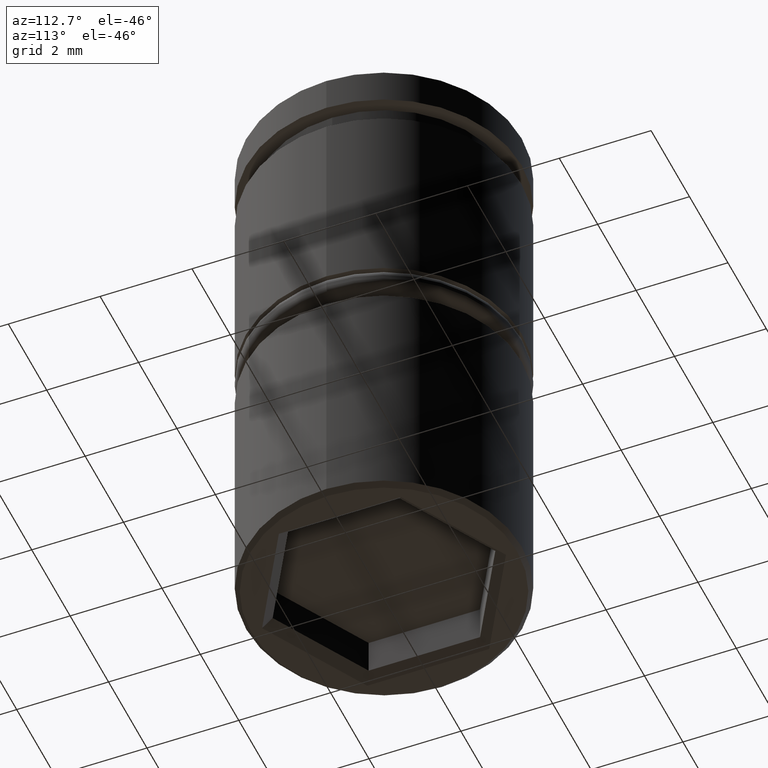
[diagram: clean part render]
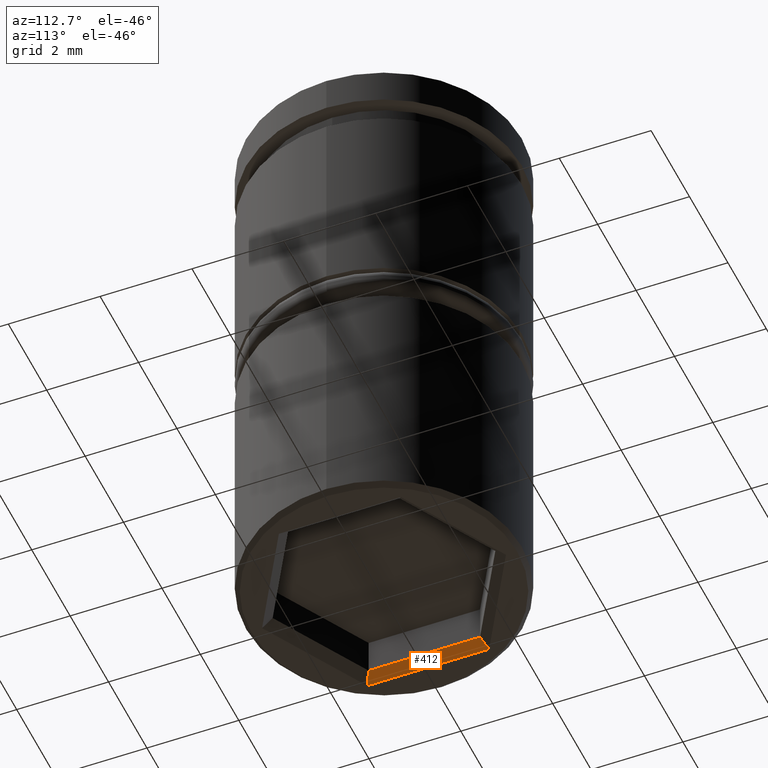
[diagram: same view with one face highlighted and labeled with its STEP entity id]
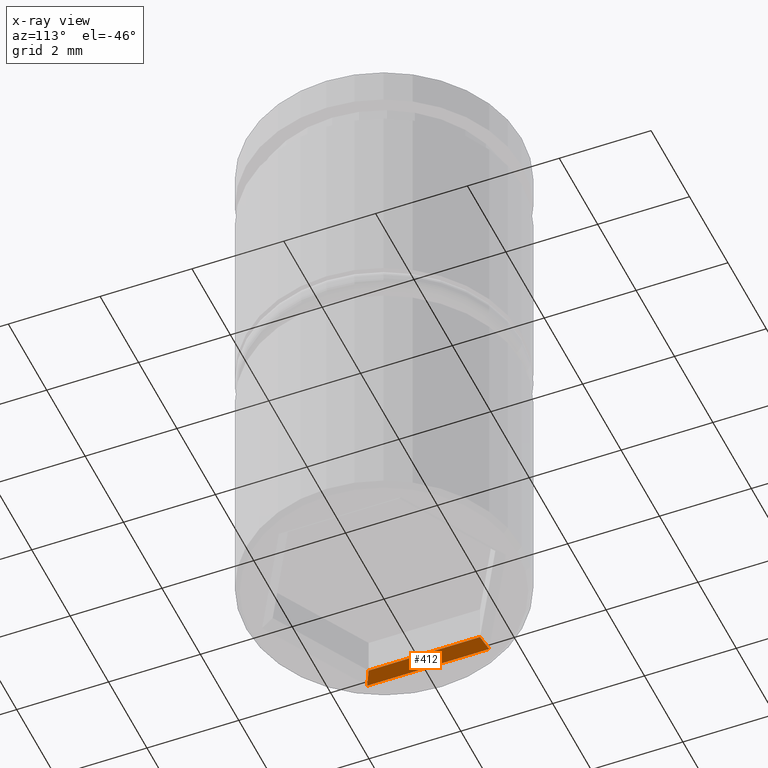
[diagram: x-ray of the same camera — body ghosted, the highlighted face saturated]
A machine part, auxiliary view. The second image highlights one B-rep face of the part: STEP entity #412.
The next image is the same camera in x-ray: the body ghosted, the highlighted face saturated — about 0% of this face is hidden behind the body in this view.
In plain terms, the highlighted planar face has unit normal (0.7071, 0, -0.7071).
Its self-contained STEP definition (entity closure, byte-faithful):
#37 = LINE ( 'NONE', #1136, #434 ) ;
#38 = ORIENTED_EDGE ( 'NONE', *, *, #228, .F. ) ;
#63 = CARTESIAN_POINT ( 'NONE',  ( -2.099999999999996980, 1.212435565298212392, -11.79999999999999893 ) ) ;
#195 = CARTESIAN_POINT ( 'NONE',  ( -1.499999999999997335, -0.8660254037844378194, -11.19999999999999929 ) ) ;
#215 = DIRECTION ( 'NONE',  ( 0.7071067811865475727, 0.000000000000000000, -0.7071067811865475727 ) ) ;
#219 = VERTEX_POINT ( 'NONE', #632 ) ;
#228 = EDGE_CURVE ( 'NONE', #528, #804, #1017, .T. ) ;
#244 = DIRECTION ( 'NONE',  ( 0.000000000000000000, 1.000000000000000000, 0.000000000000000000 ) ) ;
#287 = CARTESIAN_POINT ( 'NONE',  ( -2.099999999999996980, -1.212435565298212614, -11.79999999999999893 ) ) ;
#301 = FACE_OUTER_BOUND ( 'NONE', #1175, .T. ) ;
#309 = DIRECTION ( 'NONE',  ( 0.000000000000000000, -1.000000000000000000, 0.000000000000000000 ) ) ;
#314 = DIRECTION ( 'NONE',  ( 0.000000000000000000, -1.000000000000000000, 0.000000000000000000 ) ) ;
#331 = CARTESIAN_POINT ( 'NONE',  ( -1.499999999999998446, 0.8660254037844378194, -11.20000000000000107 ) ) ;
#412 = ADVANCED_FACE ( 'NONE', ( #301 ), #1045, .T. ) ;
#414 = CARTESIAN_POINT ( 'NONE',  ( -2.099999999999996980, -1.212435565298212614, -11.79999999999999893 ) ) ;
#427 = VECTOR ( 'NONE', #832, 1000.000000000000000 ) ;
#431 = EDGE_CURVE ( 'NONE', #532, #528, #37, .T. ) ;
#434 = VECTOR ( 'NONE', #309, 1000.000000000000000 ) ;
#501 = EDGE_CURVE ( 'NONE', #804, #219, #625, .T. ) ;
#514 = VECTOR ( 'NONE', #244, 1000.000000000000000 ) ;
#528 = VERTEX_POINT ( 'NONE', #977 ) ;
#532 = VERTEX_POINT ( 'NONE', #1075 ) ;
#550 = ORIENTED_EDGE ( 'NONE', *, *, #1015, .T. ) ;
#625 = LINE ( 'NONE', #63, #514 ) ;
#632 = CARTESIAN_POINT ( 'NONE',  ( -2.099999999999996980, 1.212435565298212392, -11.79999999999999893 ) ) ;
#789 = DIRECTION ( 'NONE',  ( 0.6546536707079771977, -0.3779644730092266980, 0.6546536707079771977 ) ) ;
#804 = VERTEX_POINT ( 'NONE', #287 ) ;
#832 = DIRECTION ( 'NONE',  ( 0.6546536707079771977, 0.3779644730092270866, 0.6546536707079771977 ) ) ;
#840 = ORIENTED_EDGE ( 'NONE', *, *, #501, .F. ) ;
#975 = LINE ( 'NONE', #331, #1116 ) ;
#977 = CARTESIAN_POINT ( 'NONE',  ( -2.299999999999997158, -1.327905619136137805, -12.00000000000000000 ) ) ;
#1015 = EDGE_CURVE ( 'NONE', #532, #219, #975, .T. ) ;
#1017 = LINE ( 'NONE', #195, #427 ) ;
#1045 = PLANE ( 'NONE',  #1092 ) ;
#1075 = CARTESIAN_POINT ( 'NONE',  ( -2.299999999999997158, 1.327905619136137583, -12.00000000000000000 ) ) ;
#1085 = ORIENTED_EDGE ( 'NONE', *, *, #431, .F. ) ;
#1092 = AXIS2_PLACEMENT_3D ( 'NONE', #414, #215, #314 ) ;
#1116 = VECTOR ( 'NONE', #789, 1000.000000000000114 ) ;
#1136 = CARTESIAN_POINT ( 'NONE',  ( -2.299999999999997158, -1.212435565298212614, -12.00000000000000000 ) ) ;
#1175 = EDGE_LOOP ( 'NONE', ( #550, #840, #38, #1085 ) ) ;